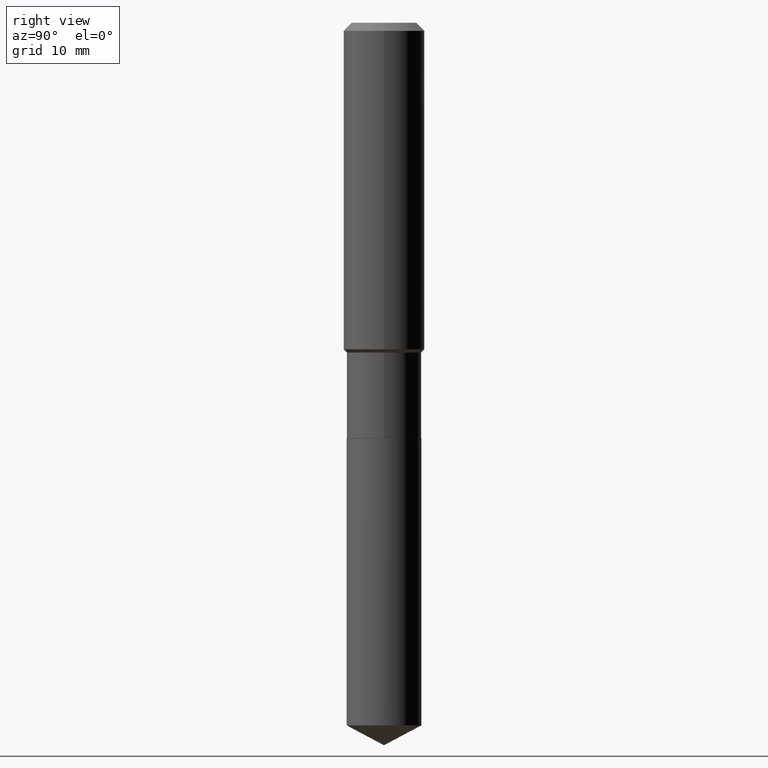
[diagram: clean part render]
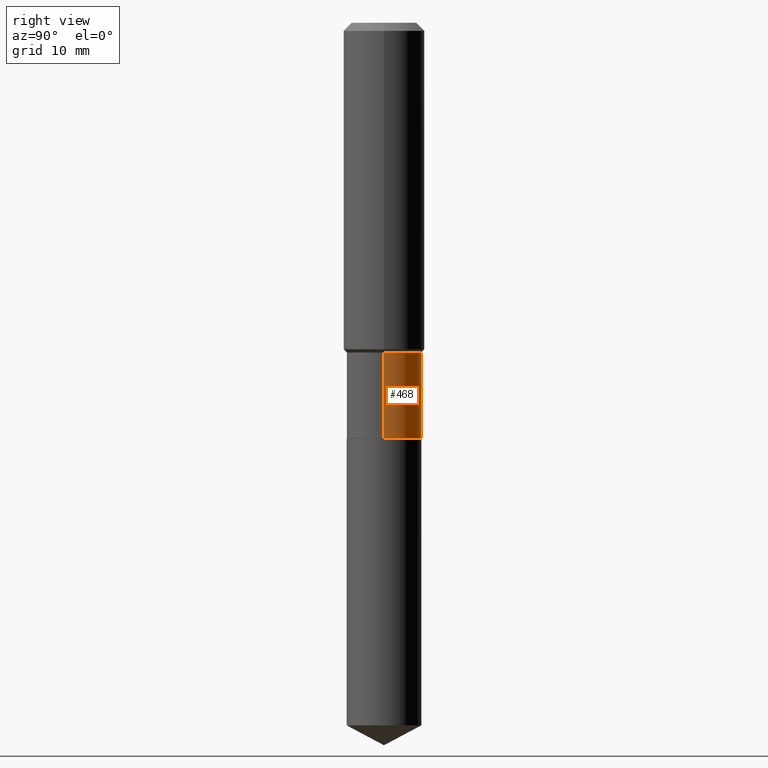
[diagram: same view with one face highlighted and labeled with its STEP entity id]
A machine part, right view. The second image highlights one B-rep face of the part: STEP entity #468.
In plain terms, the highlighted cylindrical surface (partial cylindrical patch) has radius 4.5999 mm, axis along (-0, 0, 1).
Its self-contained STEP definition (entity closure, byte-faithful):
#5 = FACE_OUTER_BOUND ( 'NONE', #473, .T. ) ;
#13 = CIRCLE ( 'NONE', #32, 0.1810999999999999832 ) ;
#20 = DIRECTION ( 'NONE',  ( -2.445468806185136597E-29, 3.491481338843145583E-15, 1.000000000000000000 ) ) ;
#25 = VERTEX_POINT ( 'NONE', #64 ) ;
#32 = AXIS2_PLACEMENT_3D ( 'NONE', #304, #343, #461 ) ;
#42 = VECTOR ( 'NONE', #425, 39.37007874015748143 ) ;
#46 = LINE ( 'NONE', #270, #301 ) ;
#64 = CARTESIAN_POINT ( 'NONE',  ( -0.1810999999999999832, -5.023012181095790067E-15, -1.599199999999999733 ) ) ;
#117 = LINE ( 'NONE', #387, #42 ) ;
#119 = DIRECTION ( 'NONE',  ( -2.445468806185136597E-29, 3.491481338843145583E-15, 1.000000000000000000 ) ) ;
#140 = ORIENTED_EDGE ( 'NONE', *, *, #382, .T. ) ;
#145 = EDGE_CURVE ( 'NONE', #443, #219, #117, .T. ) ;
#148 = DIRECTION ( 'NONE',  ( -2.445468806185136877E-29, 3.491481338843145188E-15, 1.000000000000000000 ) ) ;
#149 = AXIS2_PLACEMENT_3D ( 'NONE', #164, #20, #439 ) ;
#163 = EDGE_CURVE ( 'NONE', #208, #25, #46, .T. ) ;
#164 = CARTESIAN_POINT ( 'NONE',  ( 0.000000000000000000, 0.000000000000000000, 0.000000000000000000 ) ) ;
#171 = EDGE_CURVE ( 'NONE', #219, #25, #414, .T. ) ;
#177 = AXIS2_PLACEMENT_3D ( 'NONE', #272, #119, #189 ) ;
#189 = DIRECTION ( 'NONE',  ( 1.000000000000000000, -6.982962677686267499E-15, 0.000000000000000000 ) ) ;
#208 = VERTEX_POINT ( 'NONE', #229 ) ;
#215 = ORIENTED_EDGE ( 'NONE', *, *, #171, .F. ) ;
#219 = VERTEX_POINT ( 'NONE', #392 ) ;
#229 = CARTESIAN_POINT ( 'NONE',  ( -0.1810999999999999832, -5.023012181095790067E-15, -2.015199999999999658 ) ) ;
#270 = CARTESIAN_POINT ( 'NONE',  ( -0.1810999999999999832, 1.286792894461541317E-15, -8.908191448451633036E-30 ) ) ;
#272 = CARTESIAN_POINT ( 'NONE',  ( 3.910793714851269512E-29, -5.583576957077957107E-15, -1.599199999999999733 ) ) ;
#301 = VECTOR ( 'NONE', #148, 39.37007874015748143 ) ;
#304 = CARTESIAN_POINT ( 'NONE',  ( 4.928108738224286960E-29, -7.036033194036706451E-15, -2.015199999999999658 ) ) ;
#343 = DIRECTION ( 'NONE',  ( -2.445468806185136597E-29, 3.491481338843145583E-15, 1.000000000000000000 ) ) ;
#360 = CYLINDRICAL_SURFACE ( 'NONE', #149, 0.1810999999999999832 ) ;
#382 = EDGE_CURVE ( 'NONE', #443, #208, #13, .T. ) ;
#387 = CARTESIAN_POINT ( 'NONE',  ( 0.1810999999999999832, -1.264614540928982742E-15, 8.830756140966438813E-30 ) ) ;
#392 = CARTESIAN_POINT ( 'NONE',  ( 0.1810999999999999832, -6.848191498006940046E-15, -1.599199999999999733 ) ) ;
#403 = ORIENTED_EDGE ( 'NONE', *, *, #145, .F. ) ;
#414 = CIRCLE ( 'NONE', #177, 0.1810999999999999832 ) ;
#416 = CARTESIAN_POINT ( 'NONE',  ( 0.1810999999999999832, -8.300647734965688602E-15, -2.015199999999999658 ) ) ;
#425 = DIRECTION ( 'NONE',  ( -2.445468806185136877E-29, 3.491481338843145188E-15, 1.000000000000000000 ) ) ;
#439 = DIRECTION ( 'NONE',  ( 1.000000000000000000, -6.982962677686266711E-15, 4.876176775795935793E-29 ) ) ;
#443 = VERTEX_POINT ( 'NONE', #416 ) ;
#445 = ORIENTED_EDGE ( 'NONE', *, *, #163, .T. ) ;
#461 = DIRECTION ( 'NONE',  ( 1.000000000000000000, -6.982962677686267499E-15, 0.000000000000000000 ) ) ;
#468 = ADVANCED_FACE ( 'NONE', ( #5 ), #360, .T. ) ;
#473 = EDGE_LOOP ( 'NONE', ( #140, #445, #215, #403 ) ) ;